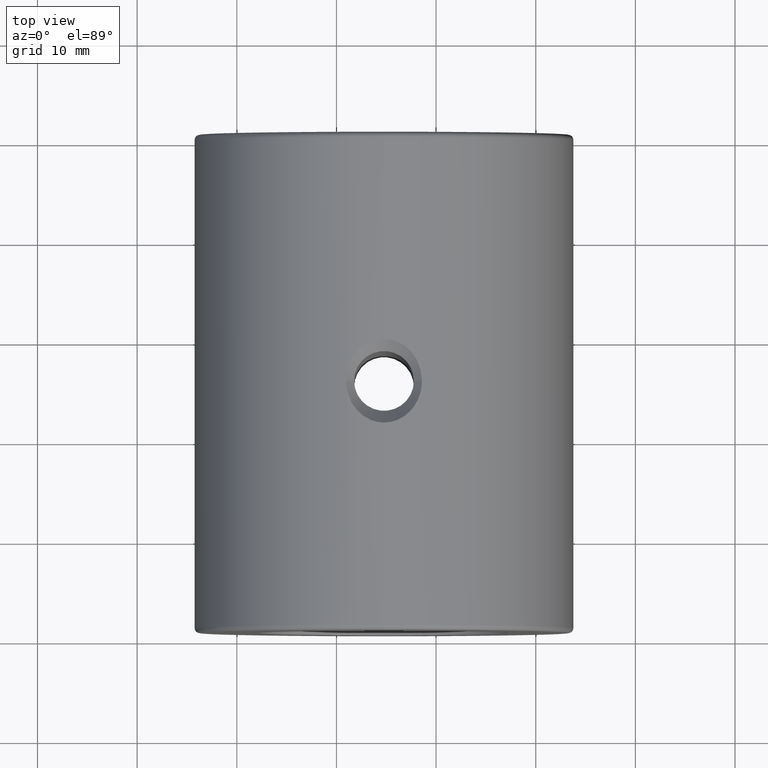
[diagram: clean part render]
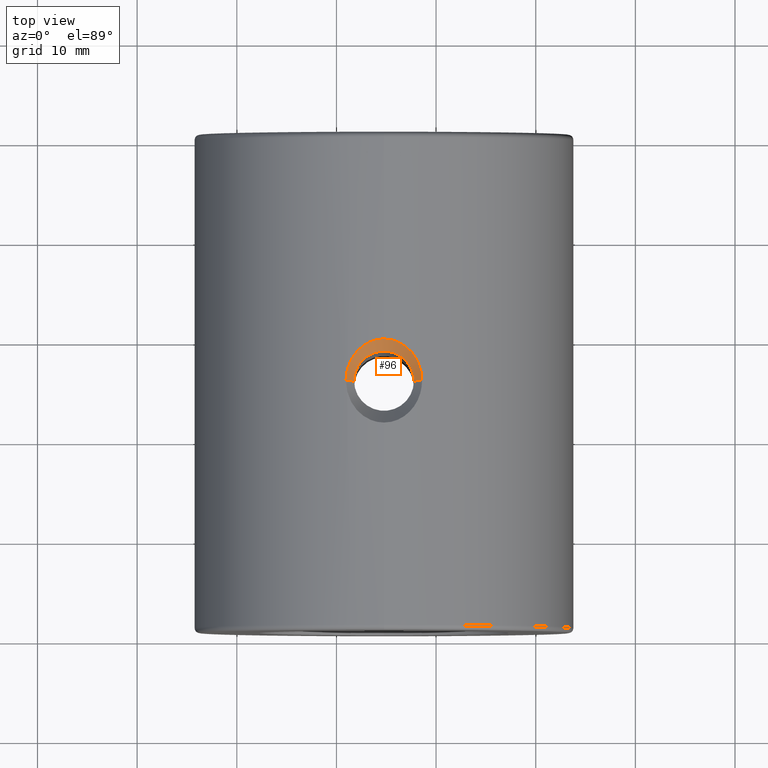
[diagram: same view with one face highlighted and labeled with its STEP entity id]
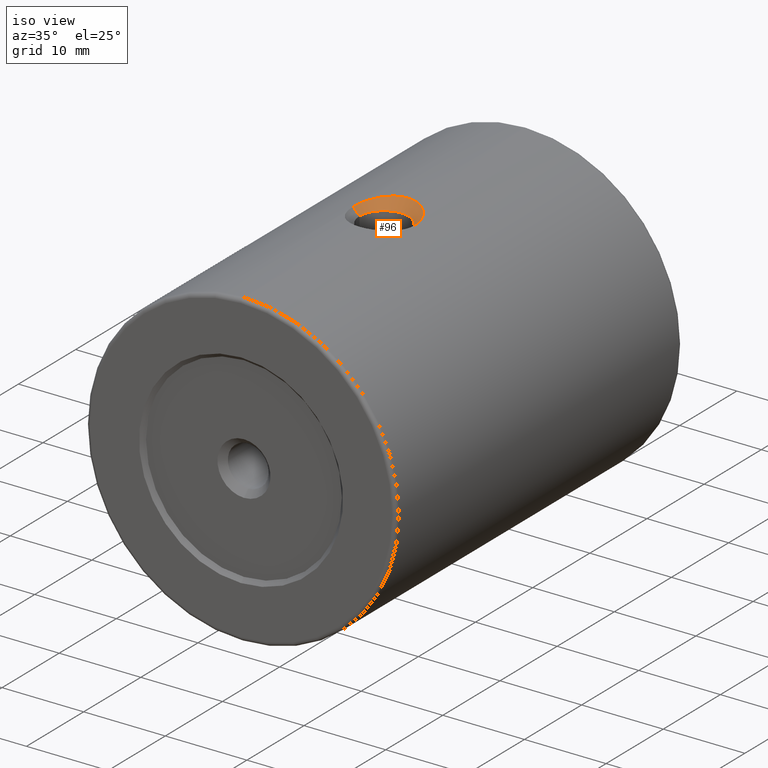
[diagram: same view with one face highlighted and labeled with its STEP entity id]
A machine part, top view. The second image highlights one B-rep face of the part: STEP entity #96.
A second angle (iso view) of the same face is appended — the face is thin or edge-on in the first view.
In plain terms, the highlighted conical surface has half-angle 45 deg.
Its self-contained STEP definition (entity closure, byte-faithful):
#6 = CARTESIAN_POINT ( 'NONE',  ( -89.04018469271751712, -4.261339991674283567, 418.6133848591761648 ) ) ;
#9 = CARTESIAN_POINT ( 'NONE',  ( -82.29571650229409840, -1.565921010254242685, 418.7733634629371409 ) ) ;
#16 = CARTESIAN_POINT ( 'NONE',  ( -81.52612773688036896, -3.217498801581725854, 418.6361777253471814 ) ) ;
#36 = VERTEX_POINT ( 'NONE', #340 ) ;
#63 = CARTESIAN_POINT ( 'NONE',  ( -86.26440072079715549, -0.2103516366053766184, 418.9733999019272801 ) ) ;
#69 = ORIENTED_EDGE ( 'NONE', *, *, #304, .T. ) ;
#77 = CARTESIAN_POINT ( 'NONE',  ( -86.51258600344370109, -0.2986253842693811777, 418.9579180337008211 ) ) ;
#81 = CARTESIAN_POINT ( 'NONE',  ( -82.14497683168238495, -1.778754477084894647, 418.7488661386886406 ) ) ;
#88 = DIRECTION ( 'NONE',  ( -0.7071067811865487940, 0.0000000000000000000, 0.7071067811865463515 ) ) ;
#96 = ADVANCED_FACE ( 'NONE', ( #662 ), #706, .F. ) ;
#111 = VECTOR ( 'NONE', #88, 1000.000000000000000 ) ;
#134 = CARTESIAN_POINT ( 'NONE',  ( -88.30889371447072733, -1.779107847670829301, 418.7488230436633785 ) ) ;
#146 = ORIENTED_EDGE ( 'NONE', *, *, #350, .T. ) ;
#158 = DIRECTION ( 'NONE',  ( 0.7071067811865487940, -8.659560562354948882E-17, 0.7071067811865463515 ) ) ;
#165 = CARTESIAN_POINT ( 'NONE',  ( -83.46511704992533964, -0.5280370949836369343, 418.9196591600729107 ) ) ;
#166 = DIRECTION ( 'NONE',  ( -1.000000000000000000, 0.0000000000000000000, 0.0000000000000000000 ) ) ;
#209 = CARTESIAN_POINT ( 'NONE',  ( -87.81247192360183362, -1.166828721202192165, 418.8240449429266050 ) ) ;
#216 = CARTESIAN_POINT ( 'NONE',  ( -85.22679983354142053, -0.06133999167429877997, 419.0000000000000568 ) ) ;
#229 = ORIENTED_EDGE ( 'NONE', *, *, #529, .T. ) ;
#233 = CARTESIAN_POINT ( 'NONE',  ( -89.42679983354143758, -4.261339991674283567, 419.0000000000000568 ) ) ;
#235 = CARTESIAN_POINT ( 'NONE',  ( -85.22679983354142053, -4.261339991674283567, 419.0000000000000568 ) ) ;
#251 = CARTESIAN_POINT ( 'NONE',  ( -81.41341497436532393, -4.261339991674279126, 418.6133848591761648 ) ) ;
#258 = CARTESIAN_POINT ( 'NONE',  ( -84.18753268678747759, -0.2111030241652349926, 418.9732691674435046 ) ) ;
#260 = VERTEX_POINT ( 'NONE', #681 ) ;
#264 = ORIENTED_EDGE ( 'NONE', *, *, #608, .T. ) ;
#302 = CARTESIAN_POINT ( 'NONE',  ( -88.68258810927235913, -2.470732174027440387, 418.6833015855973485 ) ) ;
#304 = EDGE_CURVE ( 'NONE', #906, #991, #364, .T. ) ;
#334 = EDGE_CURVE ( 'NONE', #260, #991, #646, .T. ) ;
#340 = CARTESIAN_POINT ( 'NONE',  ( -82.22679983354142053, -4.261339991674283567, 417.8000000000000114 ) ) ;
#350 = EDGE_CURVE ( 'NONE', #952, #906, #911, .T. ) ;
#364 = B_SPLINE_CURVE_WITH_KNOTS ( 'NONE', 3,
 ( #860, #471, #786, #63, #77, #449, #686, #610, #209, #384, #134, #690, #302, #999, #927, #477, #873, #6 ),
 .UNSPECIFIED., .F., .F.,
 ( 4, 2, 2, 2, 2, 2, 2, 2, 4 ),
 ( 0.01633425834401431784, 0.01712048413198442517, 0.01790670991995452904, 0.01869293570792463638, 0.01947916149589474372, 0.02026538728386484758, 0.02105161307183495145, 0.02183783885980505879, 0.02262406464777516613 ),
 .UNSPECIFIED. ) ;
#384 = CARTESIAN_POINT ( 'NONE',  ( -88.15730954550808462, -1.565196067254975176, 418.7734514940302688 ) ) ;
#397 = CARTESIAN_POINT ( 'NONE',  ( -81.77187972696634688, -2.468561370532886379, 418.6834641745472823 ) ) ;
#406 = CARTESIAN_POINT ( 'NONE',  ( -85.22679983354142053, -0.06133999167429877997, 419.0000000000000568 ) ) ;
#412 = CARTESIAN_POINT ( 'NONE',  ( -83.94119362236200743, -0.2983445582111095007, 418.9579599544148323 ) ) ;
#449 = CARTESIAN_POINT ( 'NONE',  ( -86.98394057735728779, -0.5256534841595331686, 418.9200517613895727 ) ) ;
#450 = VECTOR ( 'NONE', #158, 1000.000000000000000 ) ;
#451 = LINE ( 'NONE', #768, #450 ) ;
#471 = CARTESIAN_POINT ( 'NONE',  ( -85.48903342595741606, -0.06133999167429705912, 419.0000000000001705 ) ) ;
#476 = DIRECTION ( 'NONE',  ( 0.0000000000000000000, 0.0000000000000000000, -1.000000000000000000 ) ) ;
#477 = CARTESIAN_POINT ( 'NONE',  ( -89.01727933074084831, -3.733366076984472315, 418.6181191867033817 ) ) ;
#489 = ORIENTED_EDGE ( 'NONE', *, *, #334, .F. ) ;
#496 = CARTESIAN_POINT ( 'NONE',  ( -81.59279953389886941, -2.964568543362574360, 418.6494597328340888 ) ) ;
#519 = EDGE_LOOP ( 'NONE', ( #264, #229, #146, #69, #489 ) ) ;
#529 = EDGE_CURVE ( 'NONE', #36, #952, #451, .T. ) ;
#554 = DIRECTION ( 'NONE',  ( -0.0000000000000000000, -0.0000000000000000000, 1.000000000000000000 ) ) ;
#568 = CARTESIAN_POINT ( 'NONE',  ( -81.43639937781144056, -3.732814026306843225, 418.6181352063767918 ) ) ;
#576 = CARTESIAN_POINT ( 'NONE',  ( -81.88335953815429491, -2.229144387579318209, 418.7039841074685000 ) ) ;
#608 = EDGE_CURVE ( 'NONE', #260, #36, #973, .T. ) ;
#610 = CARTESIAN_POINT ( 'NONE',  ( -87.62330431072487613, -0.9868626275845048257, 418.8494039038823757 ) ) ;
#614 = AXIS2_PLACEMENT_3D ( 'NONE', #627, #476, #934 ) ;
#627 = CARTESIAN_POINT ( 'NONE',  ( -85.22679983354142053, -4.261339991674283567, 417.8000000000000114 ) ) ;
#646 = LINE ( 'NONE', #233, #111 ) ;
#662 = FACE_OUTER_BOUND ( 'NONE', #519, .T. ) ;
#681 = CARTESIAN_POINT ( 'NONE',  ( -88.22679983354142053, -4.261339991674283567, 417.8000000000000114 ) ) ;
#686 = CARTESIAN_POINT ( 'NONE',  ( -87.21008987037792792, -0.6665384523181927534, 418.8973495991008917 ) ) ;
#690 = CARTESIAN_POINT ( 'NONE',  ( -88.57090845425022962, -2.230408319438852871, 418.7038660641689489 ) ) ;
#699 = CARTESIAN_POINT ( 'NONE',  ( -89.04018469271751712, -4.261339991674283567, 418.6133848591761648 ) ) ;
#706 = CONICAL_SURFACE ( 'NONE', #977, 4.200000000000009059, 0.7853981633974500554 ) ;
#768 = CARTESIAN_POINT ( 'NONE',  ( -81.02679983354141768, -4.261339991674284455, 419.0000000000000568 ) ) ;
#786 = CARTESIAN_POINT ( 'NONE',  ( -85.74900820764774778, -0.09101629208817690886, 418.9945733790917757 ) ) ;
#790 = CARTESIAN_POINT ( 'NONE',  ( -81.41341497436532393, -4.261339991674279126, 418.6133848591761648 ) ) ;
#793 = CARTESIAN_POINT ( 'NONE',  ( -82.83102515499484753, -0.9863390833895698817, 418.8494842750069438 ) ) ;
#798 = CARTESIAN_POINT ( 'NONE',  ( -82.64087668775827922, -1.167056617506570415, 418.8240119711596208 ) ) ;
#808 = CARTESIAN_POINT ( 'NONE',  ( -84.69707466841043697, -0.09239770115273915341, 418.9943257409157127 ) ) ;
#813 = CARTESIAN_POINT ( 'NONE',  ( -83.24199987212080032, -0.6676668308104377614, 418.8971787009924697 ) ) ;
#860 = CARTESIAN_POINT ( 'NONE',  ( -85.22679983354142053, -0.06133999167429877997, 419.0000000000000568 ) ) ;
#866 = CARTESIAN_POINT ( 'NONE',  ( -81.41341497436532393, -3.997586484548957486, 418.6133848591761648 ) ) ;
#873 = CARTESIAN_POINT ( 'NONE',  ( -89.04018469271751712, -3.999029654920558841, 418.6133848591761648 ) ) ;
#906 = VERTEX_POINT ( 'NONE', #216 ) ;
#911 = B_SPLINE_CURVE_WITH_KNOTS ( 'NONE', 3,
 ( #251, #866, #568, #16, #496, #397, #576, #81, #9, #798, #793, #813, #165, #412, #258, #808, #959, #406 ),
 .UNSPECIFIED., .F., .F.,
 ( 4, 2, 2, 2, 2, 2, 2, 2, 4 ),
 ( 0.01002925114519557376, 0.01081737704504791807, 0.01160550294490026065, 0.01239362884475260496, 0.01318175474460494753, 0.01396988064445729011, 0.01475800654430963268, 0.01554613244416197526, 0.01633425834401431784 ),
 .UNSPECIFIED. ) ;
#927 = CARTESIAN_POINT ( 'NONE',  ( -88.92749338337961262, -3.217524007279799481, 418.6361735374826480 ) ) ;
#934 = DIRECTION ( 'NONE',  ( 1.000000000000000000, 0.0000000000000000000, 0.0000000000000000000 ) ) ;
#952 = VERTEX_POINT ( 'NONE', #790 ) ;
#959 = CARTESIAN_POINT ( 'NONE',  ( -84.96393248785446417, -0.06133999167429705912, 419.0000000000001705 ) ) ;
#973 = CIRCLE ( 'NONE', #614, 3.000000000000002665 ) ;
#977 = AXIS2_PLACEMENT_3D ( 'NONE', #235, #554, #166 ) ;
#991 = VERTEX_POINT ( 'NONE', #699 ) ;
#999 = CARTESIAN_POINT ( 'NONE',  ( -88.86084895124396610, -2.964938769552044828, 418.6494481890263728 ) ) ;